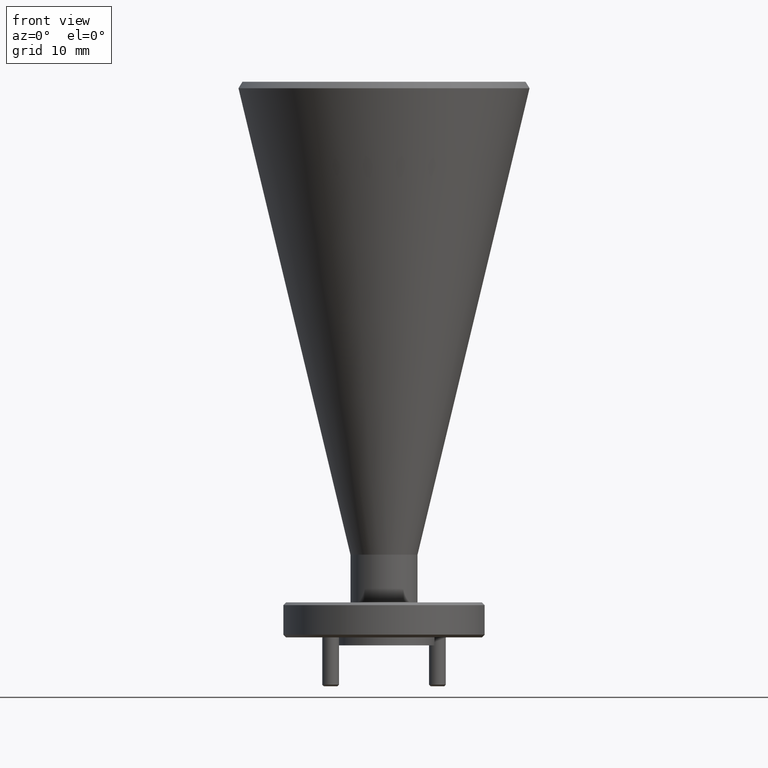
[diagram: clean part render]
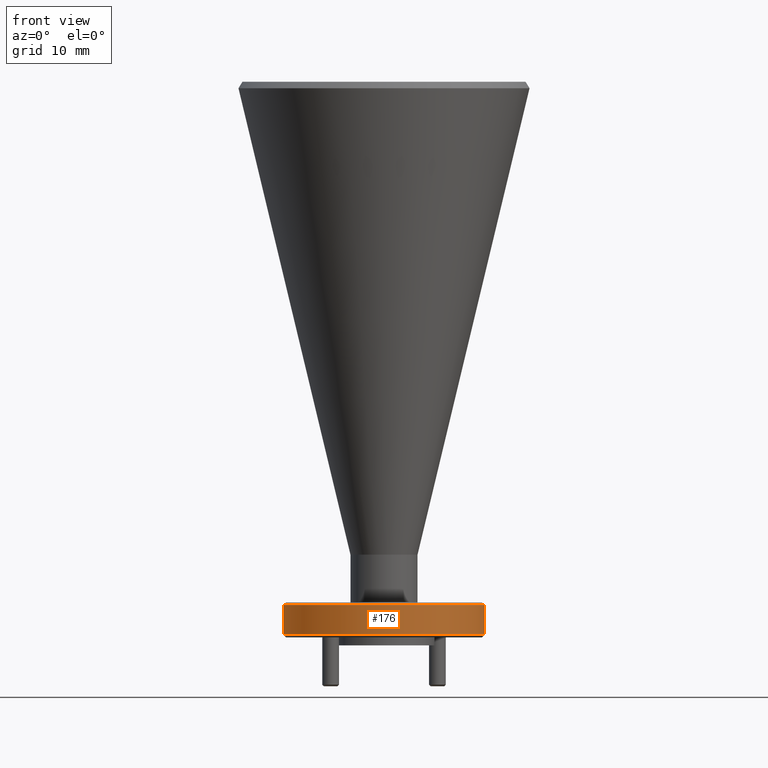
[diagram: same view with one face highlighted and labeled with its STEP entity id]
A machine part, front view. The second image highlights one B-rep face of the part: STEP entity #176.
In plain terms, the highlighted cylindrical surface (partial cylindrical patch) has radius 9.525 mm, axis along (-0, -0, 1).
Its self-contained STEP definition (entity closure, byte-faithful):
#33 = FACE_OUTER_BOUND ( 'NONE', #1011, .T. ) ;
#110 = DIRECTION ( 'NONE',  ( -1.000000000000000000, 0.0000000000000000000, 0.0000000000000000000 ) ) ;
#128 = AXIS2_PLACEMENT_3D ( 'NONE', #1441, #150, #814 ) ;
#150 = DIRECTION ( 'NONE',  ( -0.0000000000000000000, -0.0000000000000000000, 1.000000000000000000 ) ) ;
#154 = ORIENTED_EDGE ( 'NONE', *, *, #1756, .T. ) ;
#176 = ADVANCED_FACE ( 'NONE', ( #33 ), #1359, .T. ) ;
#201 = ORIENTED_EDGE ( 'NONE', *, *, #1416, .F. ) ;
#243 = LINE ( 'NONE', #1982, #1682 ) ;
#244 = CARTESIAN_POINT ( 'NONE',  ( -1.686298195062089700, 1.143924960471874900, -0.6994467715797552100 ) ) ;
#354 = VERTEX_POINT ( 'NONE', #886 ) ;
#499 = AXIS2_PLACEMENT_3D ( 'NONE', #1363, #713, #1174 ) ;
#541 = CIRCLE ( 'NONE', #128, 0.3749999999999999400 ) ;
#579 = ORIENTED_EDGE ( 'NONE', *, *, #784, .T. ) ;
#659 = CARTESIAN_POINT ( 'NONE',  ( -1.686298195062089700, 1.143924960471874900, -0.5894467715797522300 ) ) ;
#713 = DIRECTION ( 'NONE',  ( -0.0000000000000000000, -0.0000000000000000000, 1.000000000000000000 ) ) ;
#784 = EDGE_CURVE ( 'NONE', #1869, #354, #1439, .T. ) ;
#814 = DIRECTION ( 'NONE',  ( 1.000000000000000000, 0.0000000000000000000, 0.0000000000000000000 ) ) ;
#886 = CARTESIAN_POINT ( 'NONE',  ( -2.436298195062089400, 1.143924960471874900, -0.5894467715797522300 ) ) ;
#1011 = EDGE_LOOP ( 'NONE', ( #201, #154, #1712, #579 ) ) ;
#1169 = VERTEX_POINT ( 'NONE', #244 ) ;
#1174 = DIRECTION ( 'NONE',  ( 1.000000000000000000, 0.0000000000000000000, 0.0000000000000000000 ) ) ;
#1187 = CARTESIAN_POINT ( 'NONE',  ( -2.436298195062089400, 1.143924960471874900, 4.395099635446578100 ) ) ;
#1189 = VERTEX_POINT ( 'NONE', #1564 ) ;
#1207 = EDGE_CURVE ( 'NONE', #1169, #1869, #243, .T. ) ;
#1214 = CARTESIAN_POINT ( 'NONE',  ( -2.061298195062089400, 1.143924960471874900, -0.5894467715797522300 ) ) ;
#1359 = CYLINDRICAL_SURFACE ( 'NONE', #499, 0.3749999999999999400 ) ;
#1363 = CARTESIAN_POINT ( 'NONE',  ( -2.061298195062089400, 1.143924960471874900, 4.395099635446578100 ) ) ;
#1384 = DIRECTION ( 'NONE',  ( 0.0000000000000000000, 0.0000000000000000000, -1.000000000000000000 ) ) ;
#1398 = DIRECTION ( 'NONE',  ( -0.0000000000000000000, -0.0000000000000000000, 1.000000000000000000 ) ) ;
#1409 = LINE ( 'NONE', #1187, #1679 ) ;
#1416 = EDGE_CURVE ( 'NONE', #1189, #354, #1409, .T. ) ;
#1439 = CIRCLE ( 'NONE', #1732, 0.3749999999999999400 ) ;
#1441 = CARTESIAN_POINT ( 'NONE',  ( -2.061298195062089400, 1.143924960471874900, -0.6994467715797552100 ) ) ;
#1564 = CARTESIAN_POINT ( 'NONE',  ( -2.436298195062089400, 1.143924960471874900, -0.6994467715797552100 ) ) ;
#1679 = VECTOR ( 'NONE', #1980, 39.37007874015748100 ) ;
#1682 = VECTOR ( 'NONE', #1398, 39.37007874015748100 ) ;
#1712 = ORIENTED_EDGE ( 'NONE', *, *, #1207, .T. ) ;
#1732 = AXIS2_PLACEMENT_3D ( 'NONE', #1214, #1384, #110 ) ;
#1756 = EDGE_CURVE ( 'NONE', #1189, #1169, #541, .T. ) ;
#1869 = VERTEX_POINT ( 'NONE', #659 ) ;
#1980 = DIRECTION ( 'NONE',  ( -0.0000000000000000000, -0.0000000000000000000, 1.000000000000000000 ) ) ;
#1982 = CARTESIAN_POINT ( 'NONE',  ( -1.686298195062089700, 1.143924960471874900, 4.395099635446578100 ) ) ;